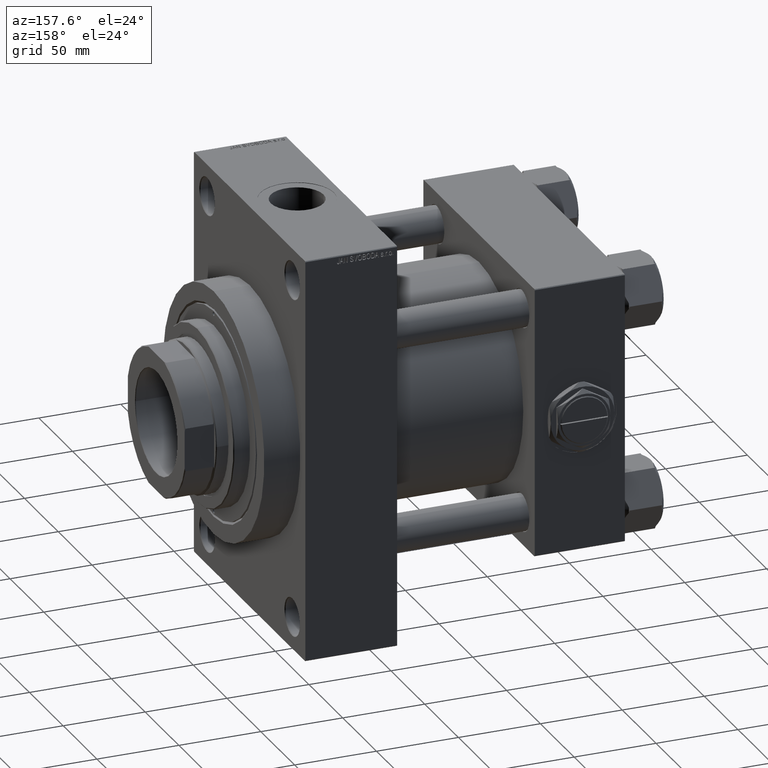
[diagram: clean part render]
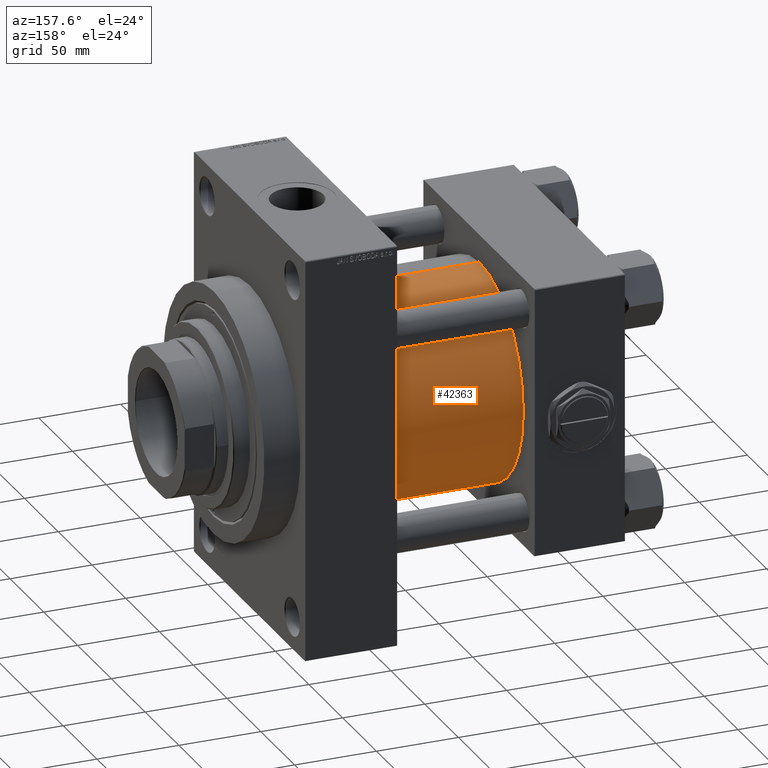
[diagram: same view with one face highlighted and labeled with its STEP entity id]
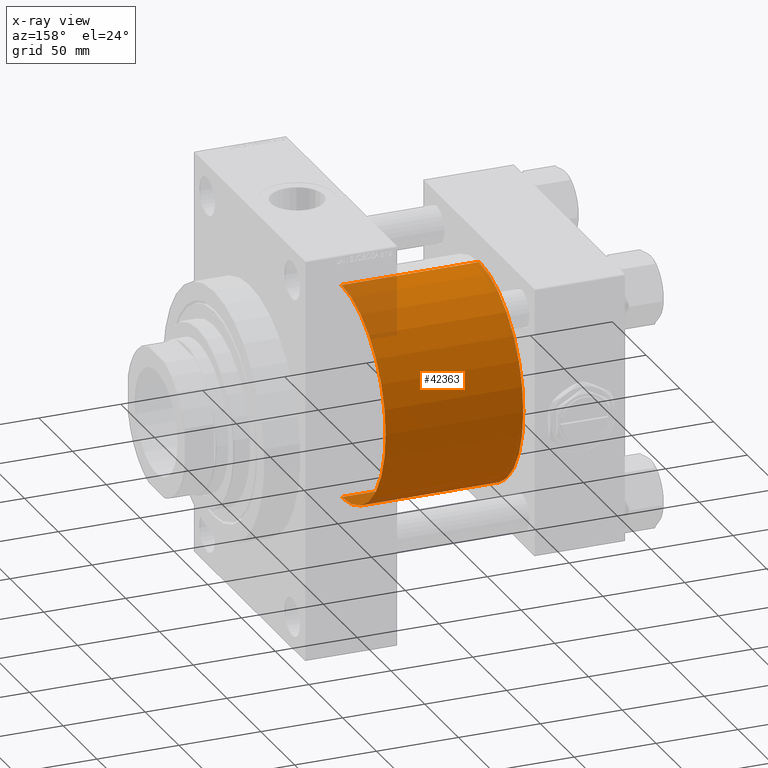
[diagram: x-ray of the same camera — body ghosted, the highlighted face saturated]
A machine part, auxiliary view. The second image highlights one B-rep face of the part: STEP entity #42363.
The next image is the same camera in x-ray: the body ghosted, the highlighted face saturated — about 9% of this face is hidden behind the body in this view.
In plain terms, the highlighted cylindrical surface (partial cylindrical patch) has radius 65.5 mm, axis along (-1, -0, -0).
Its self-contained STEP definition (entity closure, byte-faithful):
#1086 = DIRECTION ( 'NONE',  ( 0.000000000000000000, 0.000000000000000000, -1.000000000000000000 ) ) ;
#1879 = CARTESIAN_POINT ( 'NONE',  ( 54.99999999999999289, -2.602085213965210642E-15, 65.50000000000001421 ) ) ;
#2286 = CIRCLE ( 'NONE', #4694, 65.50000000000001421 ) ;
#4694 = AXIS2_PLACEMENT_3D ( 'NONE', #41766, #38724, #34695 ) ;
#5820 = EDGE_CURVE ( 'NONE', #40158, #22769, #13300, .T. ) ;
#7537 = ORIENTED_EDGE ( 'NONE', *, *, #44496, .F. ) ;
#8396 = DIRECTION ( 'NONE',  ( 1.000000000000000000, 0.000000000000000000, 0.000000000000000000 ) ) ;
#9634 = VERTEX_POINT ( 'NONE', #37297 ) ;
#10772 = CARTESIAN_POINT ( 'NONE',  ( 139.0000000000000000, 5.419351320449953395E-15, -65.50000000000001421 ) ) ;
#11611 = DIRECTION ( 'NONE',  ( -1.000000000000000000, -0.000000000000000000, -0.000000000000000000 ) ) ;
#11901 = AXIS2_PLACEMENT_3D ( 'NONE', #12030, #26413, #33962 ) ;
#12030 = CARTESIAN_POINT ( 'NONE',  ( 139.0000000000000000, -2.602085213965210642E-15, 0.000000000000000000 ) ) ;
#13300 = CIRCLE ( 'NONE', #34234, 65.50000000000001421 ) ;
#18283 = ORIENTED_EDGE ( 'NONE', *, *, #5820, .F. ) ;
#18595 = CYLINDRICAL_SURFACE ( 'NONE', #11901, 65.50000000000001421 ) ;
#22769 = VERTEX_POINT ( 'NONE', #40309 ) ;
#23817 = LINE ( 'NONE', #32138, #40919 ) ;
#25264 = EDGE_CURVE ( 'NONE', #9634, #33679, #2286, .T. ) ;
#26413 = DIRECTION ( 'NONE',  ( -1.000000000000000000, -0.000000000000000000, -0.000000000000000000 ) ) ;
#28229 = ORIENTED_EDGE ( 'NONE', *, *, #47564, .T. ) ;
#32138 = CARTESIAN_POINT ( 'NONE',  ( 139.0000000000000000, -2.602085213965210642E-15, 65.50000000000001421 ) ) ;
#33679 = VERTEX_POINT ( 'NONE', #1879 ) ;
#33962 = DIRECTION ( 'NONE',  ( 0.000000000000000000, 0.000000000000000000, 1.000000000000000000 ) ) ;
#34234 = AXIS2_PLACEMENT_3D ( 'NONE', #43158, #8396, #1086 ) ;
#34695 = DIRECTION ( 'NONE',  ( 0.000000000000000000, 0.000000000000000000, 1.000000000000000000 ) ) ;
#35768 = CARTESIAN_POINT ( 'NONE',  ( 139.0000000000000000, 5.419351320449953395E-15, -65.50000000000001421 ) ) ;
#37297 = CARTESIAN_POINT ( 'NONE',  ( 54.99999999999999289, 5.419351320449953395E-15, -65.50000000000001421 ) ) ;
#37406 = EDGE_LOOP ( 'NONE', ( #18283, #28229, #46367, #7537 ) ) ;
#37825 = VECTOR ( 'NONE', #11611, 1000.000000000000000 ) ;
#37991 = FACE_OUTER_BOUND ( 'NONE', #37406, .T. ) ;
#38724 = DIRECTION ( 'NONE',  ( 1.000000000000000000, -0.000000000000000000, -0.000000000000000000 ) ) ;
#39052 = LINE ( 'NONE', #35768, #37825 ) ;
#40158 = VERTEX_POINT ( 'NONE', #10772 ) ;
#40309 = CARTESIAN_POINT ( 'NONE',  ( 139.0000000000000000, -2.602085213965210642E-15, 65.50000000000001421 ) ) ;
#40919 = VECTOR ( 'NONE', #47487, 1000.000000000000000 ) ;
#41766 = CARTESIAN_POINT ( 'NONE',  ( 54.99999999999999289, -2.602085213965210642E-15, 0.000000000000000000 ) ) ;
#42363 = ADVANCED_FACE ( 'NONE', ( #37991 ), #18595, .T. ) ;
#43158 = CARTESIAN_POINT ( 'NONE',  ( 139.0000000000000000, -2.602085213965210642E-15, 0.000000000000000000 ) ) ;
#44496 = EDGE_CURVE ( 'NONE', #22769, #33679, #23817, .T. ) ;
#46367 = ORIENTED_EDGE ( 'NONE', *, *, #25264, .T. ) ;
#47487 = DIRECTION ( 'NONE',  ( -1.000000000000000000, -0.000000000000000000, -0.000000000000000000 ) ) ;
#47564 = EDGE_CURVE ( 'NONE', #40158, #9634, #39052, .T. ) ;